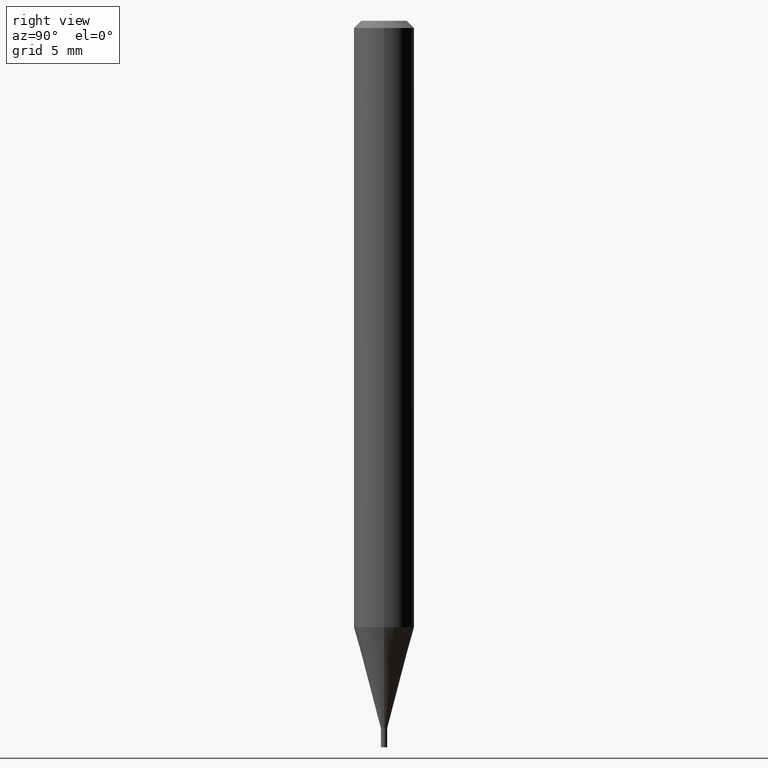
[diagram: clean part render]
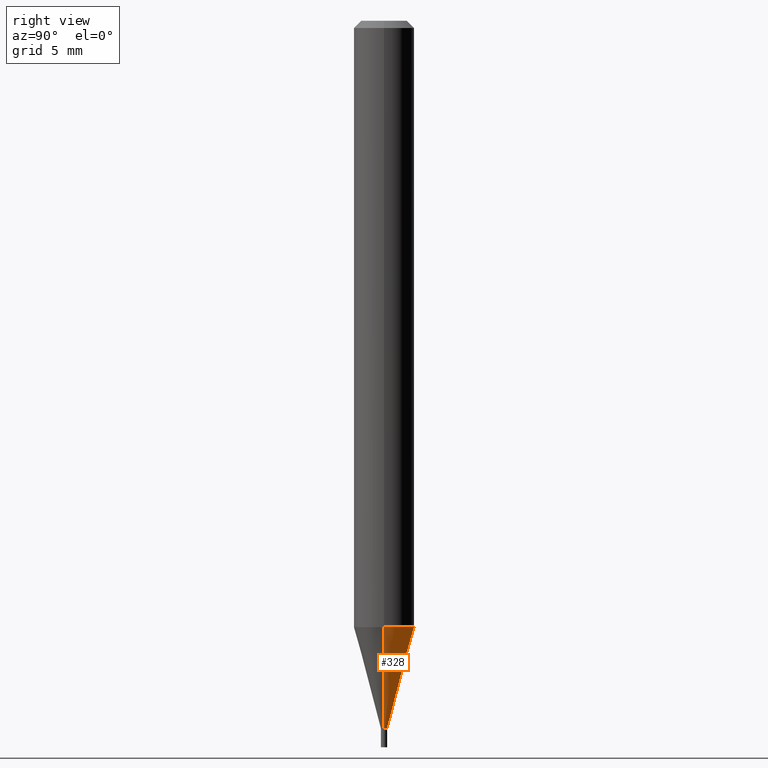
[diagram: same view with one face highlighted and labeled with its STEP entity id]
A machine part, right view. The second image highlights one B-rep face of the part: STEP entity #328.
In plain terms, the highlighted conical surface has half-angle 15 deg.
Its self-contained STEP definition (entity closure, byte-faithful):
#7 = DIRECTION ( 'NONE',  ( -2.445468806185136597E-29, 3.491481338843145583E-15, 1.000000000000000000 ) ) ;
#9 = CARTESIAN_POINT ( 'NONE',  ( 3.572829925836484317E-29, -5.101054236049835376E-15, -1.461000000000000076 ) ) ;
#26 = EDGE_CURVE ( 'NONE', #67, #125, #443, .T. ) ;
#34 = ORIENTED_EDGE ( 'NONE', *, *, #46, .T. ) ;
#40 = DIRECTION ( 'NONE',  ( -0.2588190451025211281, 5.211531920934548675E-15, 0.9659258262890682012 ) ) ;
#41 = CARTESIAN_POINT ( 'NONE',  ( 0.006499999999999648420, -5.146443493454794469E-15, -1.461000000000000076 ) ) ;
#46 = EDGE_CURVE ( 'NONE', #67, #101, #331, .T. ) ;
#65 = CARTESIAN_POINT ( 'NONE',  ( -0.006499999999999648420, -5.054868958225431584E-15, -1.461000000000000076 ) ) ;
#67 = VERTEX_POINT ( 'NONE', #260 ) ;
#79 = CARTESIAN_POINT ( 'NONE',  ( 0.06250000000000001388, -4.807787801391715089E-15, -1.252005154776141937 ) ) ;
#97 = ORIENTED_EDGE ( 'NONE', *, *, #26, .F. ) ;
#101 = VERTEX_POINT ( 'NONE', #444 ) ;
#113 = CARTESIAN_POINT ( 'NONE',  ( 3.061739551188048942E-29, -4.371352634036324208E-15, -1.252005154776141937 ) ) ;
#114 = VECTOR ( 'NONE', #298, 39.37007874015748143 ) ;
#125 = VERTEX_POINT ( 'NONE', #79 ) ;
#131 = VECTOR ( 'NONE', #40, 39.37007874015748143 ) ;
#135 = DIRECTION ( 'NONE',  ( -2.445468806185136597E-29, 3.491481338843145583E-15, 1.000000000000000000 ) ) ;
#143 = CIRCLE ( 'NONE', #196, 0.06250000000000000000 ) ;
#160 = EDGE_CURVE ( 'NONE', #125, #401, #143, .T. ) ;
#196 = AXIS2_PLACEMENT_3D ( 'NONE', #113, #330, #227 ) ;
#203 = CONICAL_SURFACE ( 'NONE', #339, 0.006499999999999648420, 0.2617993877991497964 ) ;
#227 = DIRECTION ( 'NONE',  ( 1.000000000000000000, -6.982962677686262766E-15, 0.000000000000000000 ) ) ;
#234 = FACE_OUTER_BOUND ( 'NONE', #278, .T. ) ;
#260 = CARTESIAN_POINT ( 'NONE',  ( 0.006499999999999648420, -5.146443493454794469E-15, -1.461000000000000076 ) ) ;
#278 = EDGE_LOOP ( 'NONE', ( #34, #393, #458, #97 ) ) ;
#288 = AXIS2_PLACEMENT_3D ( 'NONE', #337, #7, #374 ) ;
#298 = DIRECTION ( 'NONE',  ( 0.2588190451025211281, 1.565188264969623940E-15, 0.9659258262890682012 ) ) ;
#328 = ADVANCED_FACE ( 'NONE', ( #234 ), #203, .T. ) ;
#330 = DIRECTION ( 'NONE',  ( -2.445468806185136597E-29, 3.491481338843145583E-15, 1.000000000000000000 ) ) ;
#331 = CIRCLE ( 'NONE', #288, 0.006499999999999648420 ) ;
#337 = CARTESIAN_POINT ( 'NONE',  ( 3.572829925836484317E-29, -5.101054236049835376E-15, -1.461000000000000076 ) ) ;
#339 = AXIS2_PLACEMENT_3D ( 'NONE', #9, #135, #353 ) ;
#353 = DIRECTION ( 'NONE',  ( 1.000000000000000000, -6.982962677686336919E-15, 0.000000000000000000 ) ) ;
#374 = DIRECTION ( 'NONE',  ( 1.000000000000000000, -6.982962677686336919E-15, 0.000000000000000000 ) ) ;
#393 = ORIENTED_EDGE ( 'NONE', *, *, #433, .T. ) ;
#401 = VERTEX_POINT ( 'NONE', #459 ) ;
#433 = EDGE_CURVE ( 'NONE', #101, #401, #465, .T. ) ;
#443 = LINE ( 'NONE', #41, #114 ) ;
#444 = CARTESIAN_POINT ( 'NONE',  ( -0.006499999999999648420, -4.491066191205846194E-15, -1.461000000000000076 ) ) ;
#458 = ORIENTED_EDGE ( 'NONE', *, *, #160, .F. ) ;
#459 = CARTESIAN_POINT ( 'NONE',  ( -0.06250000000000001388, -3.927263424186260803E-15, -1.252005154776141937 ) ) ;
#465 = LINE ( 'NONE', #65, #131 ) ;